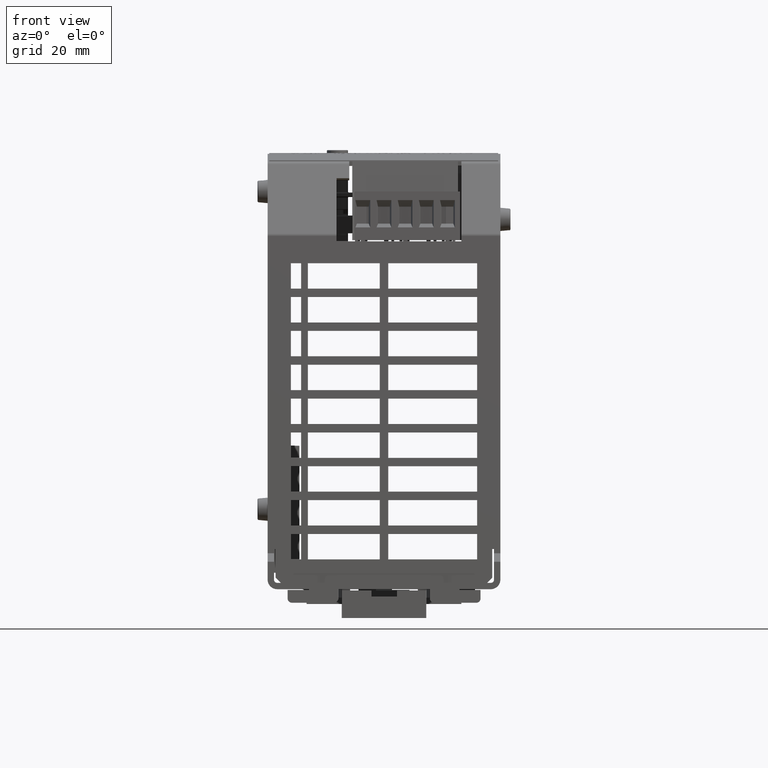
[diagram: clean part render]
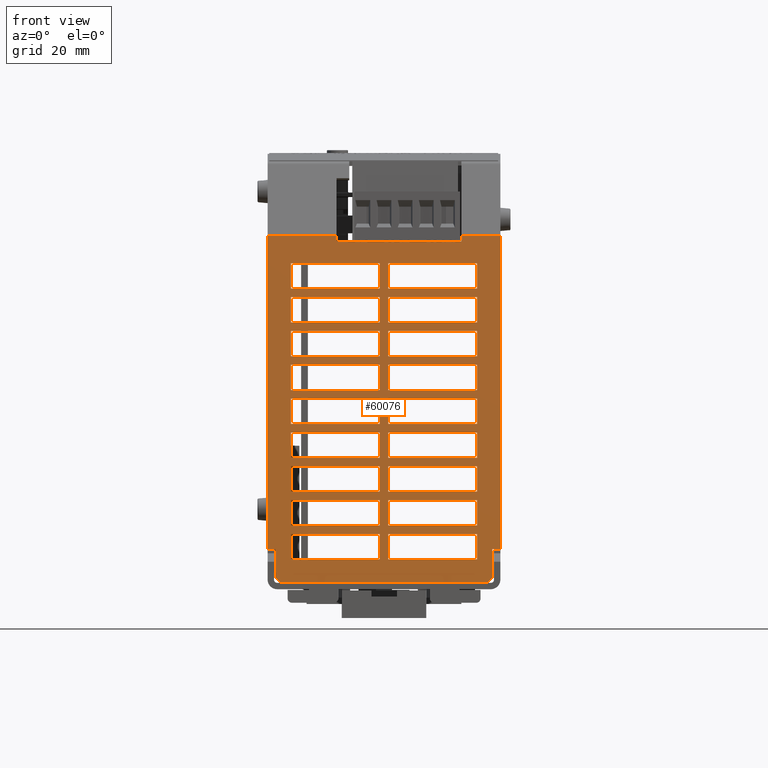
[diagram: same view with one face highlighted and labeled with its STEP entity id]
A machine part, front view. The second image highlights one B-rep face of the part: STEP entity #60076.
In plain terms, the highlighted planar face has unit normal (0, -1, 0).
Its self-contained STEP definition (entity closure, byte-faithful):
#59345=CARTESIAN_POINT('',(1.082677165354314,-2.204724409448971,3.297102970390315));
#59346=DIRECTION('',(0.0,-1.0,0.0));
#59347=DIRECTION('',(1.0,0.0,0.0));
#59348=AXIS2_PLACEMENT_3D('',#59345,#59346,#59347);
#59349=PLANE('',#59348);
#59350=CARTESIAN_POINT('',(0.960629921259829,-2.204724409448818,0.059055118110215));
#59351=VERTEX_POINT('',#59350);
#59352=CARTESIAN_POINT('',(-0.960629921259622,-2.204724409448821,0.059055118110235));
#59353=VERTEX_POINT('',#59352);
#59354=CARTESIAN_POINT('',(0.960629921259829,-2.204724409448971,0.059055118110238));
#59355=DIRECTION('',(-1.0,0.0,0.0));
#59356=VECTOR('',#59355,1.921259842519451);
#59357=LINE('',#59354,#59356);
#59358=EDGE_CURVE('',#59351,#59353,#59357,.T.);
#59359=ORIENTED_EDGE('',*,*,#59358,.F.);
#59360=CARTESIAN_POINT('',(1.007874015748031,-2.204724409448821,0.10629921259838));
#59361=VERTEX_POINT('',#59360);
#59362=CARTESIAN_POINT('',(0.960629921259829,-2.204724409448818,0.059055118110215));
#59363=DIRECTION('',(0.707106781186823,-3.988035E-014,0.707106781186272));
#59364=VECTOR('',#59363,0.066813239167225);
#59365=LINE('',#59362,#59364);
#59366=EDGE_CURVE('',#59351,#59361,#59365,.T.);
#59367=ORIENTED_EDGE('',*,*,#59366,.T.);
#59368=CARTESIAN_POINT('',(1.007874015748039,-2.20472440944882,0.374015748031467));
#59369=VERTEX_POINT('',#59368);
#59370=CARTESIAN_POINT('',(1.007874015748031,-2.204724409448821,0.10629921259838));
#59371=DIRECTION('',(0.0,0.0,1.0));
#59372=VECTOR('',#59371,0.267716535433087);
#59373=LINE('',#59370,#59372);
#59374=EDGE_CURVE('',#59361,#59369,#59373,.T.);
#59375=ORIENTED_EDGE('',*,*,#59374,.T.);
#59376=CARTESIAN_POINT('',(1.082677165354312,-2.204724409448824,0.374015748031457));
#59377=VERTEX_POINT('',#59376);
#59378=CARTESIAN_POINT('',(1.007874015748039,-2.20472440944882,0.374015748031467));
#59379=DIRECTION('',(1.0,-5.343094E-014,-1.306090E-013));
#59380=VECTOR('',#59379,0.074803149606273);
#59381=LINE('',#59378,#59380);
#59382=EDGE_CURVE('',#59369,#59377,#59381,.T.);
#59383=ORIENTED_EDGE('',*,*,#59382,.T.);
#59384=CARTESIAN_POINT('',(1.082677165354312,-2.204724409448827,3.286387887925589));
#59385=VERTEX_POINT('',#59384);
#59386=CARTESIAN_POINT('',(1.082677165354312,-2.204724409448824,0.374015748031457));
#59387=DIRECTION('',(0.0,0.0,1.0));
#59388=VECTOR('',#59387,2.912372139894131);
#59389=LINE('',#59386,#59388);
#59390=EDGE_CURVE('',#59377,#59385,#59389,.T.);
#59391=ORIENTED_EDGE('',*,*,#59390,.T.);
#59392=CARTESIAN_POINT('',(0.720472440944872,-2.204724409448827,3.286387887925584));
#59393=VERTEX_POINT('',#59392);
#59394=CARTESIAN_POINT('',(0.720472440944872,-2.204724409448827,3.286387887925584));
#59395=DIRECTION('',(1.0,0.0,0.0));
#59396=VECTOR('',#59395,0.36220472440944);
#59397=LINE('',#59394,#59396);
#59398=EDGE_CURVE('',#59393,#59385,#59397,.T.);
#59399=ORIENTED_EDGE('',*,*,#59398,.F.);
#59400=CARTESIAN_POINT('',(0.720472440944872,-2.204724409448971,3.237014947515734));
#59401=VERTEX_POINT('',#59400);
#59402=CARTESIAN_POINT('',(0.720472440944872,-2.204724409448827,3.286387887925584));
#59403=DIRECTION('',(0.0,-2.905252E-012,-1.0));
#59404=VECTOR('',#59403,0.04937294040985);
#59405=LINE('',#59402,#59404);
#59406=EDGE_CURVE('',#59393,#59401,#59405,.T.);
#59407=ORIENTED_EDGE('',*,*,#59406,.T.);
#59408=CARTESIAN_POINT('',(-0.440944881889774,-2.204724409448971,3.237014947515734));
#59409=VERTEX_POINT('',#59408);
#59410=CARTESIAN_POINT('',(0.720472440944872,-2.204724409448971,3.237014947515734));
#59411=DIRECTION('',(-1.0,0.0,0.0));
#59412=VECTOR('',#59411,1.161417322834647);
#59413=LINE('',#59410,#59412);
#59414=EDGE_CURVE('',#59401,#59409,#59413,.T.);
#59415=ORIENTED_EDGE('',*,*,#59414,.T.);
#59416=CARTESIAN_POINT('',(-0.440944881889774,-2.204724409448827,3.286387887925584));
#59417=VERTEX_POINT('',#59416);
#59418=CARTESIAN_POINT('',(-0.440944881889774,-2.204724409448971,3.237014947515734));
#59419=DIRECTION('',(0.0,2.905252E-012,1.0));
#59420=VECTOR('',#59419,0.04937294040985);
#59421=LINE('',#59418,#59420);
#59422=EDGE_CURVE('',#59409,#59417,#59421,.T.);
#59423=ORIENTED_EDGE('',*,*,#59422,.T.);
#59424=CARTESIAN_POINT('',(-1.08267716535435,-2.204724409448827,3.286387887925585));
#59425=VERTEX_POINT('',#59424);
#59426=CARTESIAN_POINT('',(-1.08267716535435,-2.204724409448827,3.286387887925585));
#59427=DIRECTION('',(1.0,0.0,0.0));
#59428=VECTOR('',#59427,0.641732283464575);
#59429=LINE('',#59426,#59428);
#59430=EDGE_CURVE('',#59425,#59417,#59429,.T.);
#59431=ORIENTED_EDGE('',*,*,#59430,.F.);
#59432=CARTESIAN_POINT('',(-1.082677165354348,-2.204724409448821,0.374015748031502));
#59433=VERTEX_POINT('',#59432);
#59434=CARTESIAN_POINT('',(-1.082677165354348,-2.204724409448821,0.374015748031502));
#59435=DIRECTION('',(0.0,0.0,1.0));
#59436=VECTOR('',#59435,2.912372139894083);
#59437=LINE('',#59434,#59436);
#59438=EDGE_CURVE('',#59433,#59425,#59437,.T.);
#59439=ORIENTED_EDGE('',*,*,#59438,.F.);
#59440=CARTESIAN_POINT('',(-1.007874015748046,-2.204724409448824,0.374015748031485));
#59441=VERTEX_POINT('',#59440);
#59442=CARTESIAN_POINT('',(-1.082677165354348,-2.204724409448821,0.374015748031502));
#59443=DIRECTION('',(1.0,-3.562063E-014,-2.270815E-013));
#59444=VECTOR('',#59443,0.074803149606303);
#59445=LINE('',#59442,#59444);
#59446=EDGE_CURVE('',#59433,#59441,#59445,.T.);
#59447=ORIENTED_EDGE('',*,*,#59446,.T.);
#59448=CARTESIAN_POINT('',(-1.007874015748047,-2.204724409448821,0.106299212598639));
#59449=VERTEX_POINT('',#59448);
#59450=CARTESIAN_POINT('',(-1.007874015748046,-2.204724409448824,0.374015748031485));
#59451=DIRECTION('',(0.0,0.0,-1.0));
#59452=VECTOR('',#59451,0.267716535432846);
#59453=LINE('',#59450,#59452);
#59454=EDGE_CURVE('',#59441,#59449,#59453,.T.);
#59455=ORIENTED_EDGE('',*,*,#59454,.T.);
#59456=CARTESIAN_POINT('',(-1.007874015748047,-2.204724409448821,0.106299212598639));
#59457=DIRECTION('',(0.707106781186703,0.0,-0.707106781186392));
#59458=VECTOR('',#59457,0.066813239167552);
#59459=LINE('',#59456,#59458);
#59460=EDGE_CURVE('',#59449,#59353,#59459,.T.);
#59461=ORIENTED_EDGE('',*,*,#59460,.T.);
#59462=EDGE_LOOP('',(#59359,#59367,#59375,#59383,#59391,#59399,#59407,#59415,#59423,#59431,#59439,#59447,#59455,#59461));
#59463=FACE_OUTER_BOUND('',#59462,.T.);
#59464=CARTESIAN_POINT('',(-0.866141732283349,-2.204724409448823,0.277559055118096));
#59465=VERTEX_POINT('',#59464);
#59466=CARTESIAN_POINT('',(-0.866141732283349,-2.204724409448823,0.513779527559042));
#59467=VERTEX_POINT('',#59466);
#59468=CARTESIAN_POINT('',(-0.866141732283349,-2.204724409448823,0.277559055118096));
#59469=DIRECTION('',(0.0,0.0,1.0));
#59470=VECTOR('',#59469,0.236220472440946);
#59471=LINE('',#59468,#59470);
#59472=EDGE_CURVE('',#59465,#59467,#59471,.T.);
#59473=ORIENTED_EDGE('',*,*,#59472,.T.);
#59474=CARTESIAN_POINT('',(-0.039370078740041,-2.204724409448823,0.513779527559042));
#59475=VERTEX_POINT('',#59474);
#59476=CARTESIAN_POINT('',(-0.866141732283349,-2.204724409448823,0.513779527559042));
#59477=DIRECTION('',(1.0,0.0,0.0));
#59478=VECTOR('',#59477,0.826771653543308);
#59479=LINE('',#59476,#59478);
#59480=EDGE_CURVE('',#59467,#59475,#59479,.T.);
#59481=ORIENTED_EDGE('',*,*,#59480,.T.);
#59482=CARTESIAN_POINT('',(-0.039370078740041,-2.204724409448823,0.277559055118096));
#59483=VERTEX_POINT('',#59482);
#59484=CARTESIAN_POINT('',(-0.039370078740041,-2.204724409448823,0.513779527559042));
#59485=DIRECTION('',(0.0,0.0,-1.0));
#59486=VECTOR('',#59485,0.236220472440946);
#59487=LINE('',#59484,#59486);
#59488=EDGE_CURVE('',#59475,#59483,#59487,.T.);
#59489=ORIENTED_EDGE('',*,*,#59488,.T.);
#59490=CARTESIAN_POINT('',(-0.039370078740041,-2.204724409448823,0.277559055118096));
#59491=DIRECTION('',(-1.0,0.0,0.0));
#59492=VECTOR('',#59491,0.826771653543307);
#59493=LINE('',#59490,#59492);
#59494=EDGE_CURVE('',#59483,#59465,#59493,.T.);
#59495=ORIENTED_EDGE('',*,*,#59494,.T.);
#59496=EDGE_LOOP('',(#59473,#59481,#59489,#59495));
#59497=FACE_BOUND('',#59496,.T.);
#59498=CARTESIAN_POINT('',(-0.866141732283348,-2.204724409448823,0.592519685039357));
#59499=VERTEX_POINT('',#59498);
#59500=CARTESIAN_POINT('',(-0.866141732283347,-2.204724409448824,0.828740157480302));
#59501=VERTEX_POINT('',#59500);
#59502=CARTESIAN_POINT('',(-0.866141732283348,-2.204724409448823,0.592519685039357));
#59503=DIRECTION('',(0.0,0.0,1.0));
#59504=VECTOR('',#59503,0.236220472440944);
#59505=LINE('',#59502,#59504);
#59506=EDGE_CURVE('',#59499,#59501,#59505,.T.);
#59507=ORIENTED_EDGE('',*,*,#59506,.T.);
#59508=CARTESIAN_POINT('',(-0.039370078740041,-2.204724409448824,0.828740157480302));
#59509=VERTEX_POINT('',#59508);
#59510=CARTESIAN_POINT('',(-0.866141732283347,-2.204724409448824,0.828740157480302));
#59511=DIRECTION('',(1.0,0.0,0.0));
#59512=VECTOR('',#59511,0.826771653543307);
#59513=LINE('',#59510,#59512);
#59514=EDGE_CURVE('',#59501,#59509,#59513,.T.);
#59515=ORIENTED_EDGE('',*,*,#59514,.T.);
#59516=CARTESIAN_POINT('',(-0.039370078740041,-2.204724409448823,0.592519685039357));
#59517=VERTEX_POINT('',#59516);
#59518=CARTESIAN_POINT('',(-0.039370078740041,-2.204724409448824,0.828740157480302));
#59519=DIRECTION('',(0.0,0.0,-1.0));
#59520=VECTOR('',#59519,0.236220472440944);
#59521=LINE('',#59518,#59520);
#59522=EDGE_CURVE('',#59509,#59517,#59521,.T.);
#59523=ORIENTED_EDGE('',*,*,#59522,.T.);
#59524=CARTESIAN_POINT('',(-0.039370078740041,-2.204724409448823,0.592519685039357));
#59525=DIRECTION('',(-1.0,0.0,0.0));
#59526=VECTOR('',#59525,0.826771653543307);
#59527=LINE('',#59524,#59526);
#59528=EDGE_CURVE('',#59517,#59499,#59527,.T.);
#59529=ORIENTED_EDGE('',*,*,#59528,.T.);
#59530=EDGE_LOOP('',(#59507,#59515,#59523,#59529));
#59531=FACE_BOUND('',#59530,.T.);
#59532=CARTESIAN_POINT('',(-0.866141732283348,-2.204724409448824,0.907480314960617));
#59533=VERTEX_POINT('',#59532);
#59534=CARTESIAN_POINT('',(-0.866141732283347,-2.204724409448824,1.143700787401562));
#59535=VERTEX_POINT('',#59534);
#59536=CARTESIAN_POINT('',(-0.866141732283348,-2.204724409448824,0.907480314960617));
#59537=DIRECTION('',(0.0,0.0,1.0));
#59538=VECTOR('',#59537,0.236220472440945);
#59539=LINE('',#59536,#59538);
#59540=EDGE_CURVE('',#59533,#59535,#59539,.T.);
#59541=ORIENTED_EDGE('',*,*,#59540,.T.);
#59542=CARTESIAN_POINT('',(-0.039370078740041,-2.204724409448824,1.143700787401562));
#59543=VERTEX_POINT('',#59542);
#59544=CARTESIAN_POINT('',(-0.866141732283347,-2.204724409448824,1.143700787401562));
#59545=DIRECTION('',(1.0,0.0,0.0));
#59546=VECTOR('',#59545,0.826771653543307);
#59547=LINE('',#59544,#59546);
#59548=EDGE_CURVE('',#59535,#59543,#59547,.T.);
#59549=ORIENTED_EDGE('',*,*,#59548,.T.);
#59550=CARTESIAN_POINT('',(-0.039370078740041,-2.204724409448824,0.907480314960617));
#59551=VERTEX_POINT('',#59550);
#59552=CARTESIAN_POINT('',(-0.039370078740041,-2.204724409448824,1.143700787401562));
#59553=DIRECTION('',(0.0,0.0,-1.0));
#59554=VECTOR('',#59553,0.236220472440945);
#59555=LINE('',#59552,#59554);
#59556=EDGE_CURVE('',#59543,#59551,#59555,.T.);
#59557=ORIENTED_EDGE('',*,*,#59556,.T.);
#59558=CARTESIAN_POINT('',(-0.039370078740041,-2.204724409448824,0.907480314960617));
#59559=DIRECTION('',(-1.0,0.0,0.0));
#59560=VECTOR('',#59559,0.826771653543307);
#59561=LINE('',#59558,#59560);
#59562=EDGE_CURVE('',#59551,#59533,#59561,.T.);
#59563=ORIENTED_EDGE('',*,*,#59562,.T.);
#59564=EDGE_LOOP('',(#59541,#59549,#59557,#59563));
#59565=FACE_BOUND('',#59564,.T.);
#59566=CARTESIAN_POINT('',(-0.866141732283347,-2.204724409448824,1.222440944881878));
#59567=VERTEX_POINT('',#59566);
#59568=CARTESIAN_POINT('',(-0.866141732283347,-2.204724409448824,1.458661417322824));
#59569=VERTEX_POINT('',#59568);
#59570=CARTESIAN_POINT('',(-0.866141732283347,-2.204724409448824,1.222440944881878));
#59571=DIRECTION('',(0.0,0.0,1.0));
#59572=VECTOR('',#59571,0.236220472440946);
#59573=LINE('',#59570,#59572);
#59574=EDGE_CURVE('',#59567,#59569,#59573,.T.);
#59575=ORIENTED_EDGE('',*,*,#59574,.T.);
#59576=CARTESIAN_POINT('',(-0.039370078740041,-2.204724409448824,1.458661417322824));
#59577=VERTEX_POINT('',#59576);
#59578=CARTESIAN_POINT('',(-0.866141732283347,-2.204724409448824,1.458661417322824));
#59579=DIRECTION('',(1.0,0.0,0.0));
#59580=VECTOR('',#59579,0.826771653543307);
#59581=LINE('',#59578,#59580);
#59582=EDGE_CURVE('',#59569,#59577,#59581,.T.);
#59583=ORIENTED_EDGE('',*,*,#59582,.T.);
#59584=CARTESIAN_POINT('',(-0.039370078740041,-2.204724409448824,1.222440944881878));
#59585=VERTEX_POINT('',#59584);
#59586=CARTESIAN_POINT('',(-0.039370078740041,-2.204724409448824,1.458661417322824));
#59587=DIRECTION('',(0.0,0.0,-1.0));
#59588=VECTOR('',#59587,0.236220472440945);
#59589=LINE('',#59586,#59588);
#59590=EDGE_CURVE('',#59577,#59585,#59589,.T.);
#59591=ORIENTED_EDGE('',*,*,#59590,.T.);
#59592=CARTESIAN_POINT('',(-0.039370078740041,-2.204724409448824,1.222440944881878));
#59593=DIRECTION('',(-1.0,0.0,0.0));
#59594=VECTOR('',#59593,0.826771653543307);
#59595=LINE('',#59592,#59594);
#59596=EDGE_CURVE('',#59585,#59567,#59595,.T.);
#59597=ORIENTED_EDGE('',*,*,#59596,.T.);
#59598=EDGE_LOOP('',(#59575,#59583,#59591,#59597));
#59599=FACE_BOUND('',#59598,.T.);
#59600=CARTESIAN_POINT('',(-0.866141732283347,-2.204724409448827,1.537401574803137));
#59601=VERTEX_POINT('',#59600);
#59602=CARTESIAN_POINT('',(-0.866141732283347,-2.204724409448825,1.773622047244082));
#59603=VERTEX_POINT('',#59602);
#59604=CARTESIAN_POINT('',(-0.866141732283347,-2.204724409448827,1.537401574803137));
#59605=DIRECTION('',(0.0,0.0,1.0));
#59606=VECTOR('',#59605,0.236220472440946);
#59607=LINE('',#59604,#59606);
#59608=EDGE_CURVE('',#59601,#59603,#59607,.T.);
#59609=ORIENTED_EDGE('',*,*,#59608,.T.);
#59610=CARTESIAN_POINT('',(-0.03937007874004,-2.204724409448825,1.773622047244082));
#59611=VERTEX_POINT('',#59610);
#59612=CARTESIAN_POINT('',(-0.866141732283347,-2.204724409448825,1.773622047244082));
#59613=DIRECTION('',(1.0,0.0,0.0));
#59614=VECTOR('',#59613,0.826771653543307);
#59615=LINE('',#59612,#59614);
#59616=EDGE_CURVE('',#59603,#59611,#59615,.T.);
#59617=ORIENTED_EDGE('',*,*,#59616,.T.);
#59618=CARTESIAN_POINT('',(-0.039370078740041,-2.204724409448827,1.537401574803137));
#59619=VERTEX_POINT('',#59618);
#59620=CARTESIAN_POINT('',(-0.03937007874004,-2.204724409448825,1.773622047244082));
#59621=DIRECTION('',(0.0,0.0,-1.0));
#59622=VECTOR('',#59621,0.236220472440946);
#59623=LINE('',#59620,#59622);
#59624=EDGE_CURVE('',#59611,#59619,#59623,.T.);
#59625=ORIENTED_EDGE('',*,*,#59624,.T.);
#59626=CARTESIAN_POINT('',(-0.039370078740041,-2.204724409448827,1.537401574803137));
#59627=DIRECTION('',(-1.0,0.0,0.0));
#59628=VECTOR('',#59627,0.826771653543307);
#59629=LINE('',#59626,#59628);
#59630=EDGE_CURVE('',#59619,#59601,#59629,.T.);
#59631=ORIENTED_EDGE('',*,*,#59630,.T.);
#59632=EDGE_LOOP('',(#59609,#59617,#59625,#59631));
#59633=FACE_BOUND('',#59632,.T.);
#59634=CARTESIAN_POINT('',(-0.866141732283347,-2.204724409448827,1.852362204724398));
#59635=VERTEX_POINT('',#59634);
#59636=CARTESIAN_POINT('',(-0.866141732283347,-2.204724409448827,2.088582677165343));
#59637=VERTEX_POINT('',#59636);
#59638=CARTESIAN_POINT('',(-0.866141732283347,-2.204724409448827,1.852362204724398));
#59639=DIRECTION('',(0.0,0.0,1.0));
#59640=VECTOR('',#59639,0.236220472440945);
#59641=LINE('',#59638,#59640);
#59642=EDGE_CURVE('',#59635,#59637,#59641,.T.);
#59643=ORIENTED_EDGE('',*,*,#59642,.T.);
#59644=CARTESIAN_POINT('',(-0.03937007874004,-2.204724409448827,2.088582677165343));
#59645=VERTEX_POINT('',#59644);
#59646=CARTESIAN_POINT('',(-0.866141732283347,-2.204724409448827,2.088582677165343));
#59647=DIRECTION('',(1.0,0.0,0.0));
#59648=VECTOR('',#59647,0.826771653543307);
#59649=LINE('',#59646,#59648);
#59650=EDGE_CURVE('',#59637,#59645,#59649,.T.);
#59651=ORIENTED_EDGE('',*,*,#59650,.T.);
#59652=CARTESIAN_POINT('',(-0.039370078740041,-2.204724409448827,1.852362204724398));
#59653=VERTEX_POINT('',#59652);
#59654=CARTESIAN_POINT('',(-0.03937007874004,-2.204724409448827,2.088582677165343));
#59655=DIRECTION('',(0.0,0.0,-1.0));
#59656=VECTOR('',#59655,0.236220472440945);
#59657=LINE('',#59654,#59656);
#59658=EDGE_CURVE('',#59645,#59653,#59657,.T.);
#59659=ORIENTED_EDGE('',*,*,#59658,.T.);
#59660=CARTESIAN_POINT('',(-0.039370078740041,-2.204724409448827,1.852362204724398));
#59661=DIRECTION('',(-1.0,0.0,0.0));
#59662=VECTOR('',#59661,0.826771653543307);
#59663=LINE('',#59660,#59662);
#59664=EDGE_CURVE('',#59653,#59635,#59663,.T.);
#59665=ORIENTED_EDGE('',*,*,#59664,.T.);
#59666=EDGE_LOOP('',(#59643,#59651,#59659,#59665));
#59667=FACE_BOUND('',#59666,.T.);
#59668=CARTESIAN_POINT('',(-0.866141732283347,-2.204724409448829,2.167322834645659));
#59669=VERTEX_POINT('',#59668);
#59670=CARTESIAN_POINT('',(-0.866141732283347,-2.204724409448827,2.403543307086602));
#59671=VERTEX_POINT('',#59670);
#59672=CARTESIAN_POINT('',(-0.866141732283347,-2.204724409448829,2.167322834645659));
#59673=DIRECTION('',(0.0,0.0,1.0));
#59674=VECTOR('',#59673,0.236220472440943);
#59675=LINE('',#59672,#59674);
#59676=EDGE_CURVE('',#59669,#59671,#59675,.T.);
#59677=ORIENTED_EDGE('',*,*,#59676,.T.);
#59678=CARTESIAN_POINT('',(-0.03937007874004,-2.204724409448827,2.403543307086602));
#59679=VERTEX_POINT('',#59678);
#59680=CARTESIAN_POINT('',(-0.866141732283347,-2.204724409448827,2.403543307086602));
#59681=DIRECTION('',(1.0,0.0,0.0));
#59682=VECTOR('',#59681,0.826771653543307);
#59683=LINE('',#59680,#59682);
#59684=EDGE_CURVE('',#59671,#59679,#59683,.T.);
#59685=ORIENTED_EDGE('',*,*,#59684,.T.);
#59686=CARTESIAN_POINT('',(-0.039370078740041,-2.204724409448829,2.167322834645659));
#59687=VERTEX_POINT('',#59686);
#59688=CARTESIAN_POINT('',(-0.03937007874004,-2.204724409448827,2.403543307086602));
#59689=DIRECTION('',(0.0,0.0,-1.0));
#59690=VECTOR('',#59689,0.236220472440943);
#59691=LINE('',#59688,#59690);
#59692=EDGE_CURVE('',#59679,#59687,#59691,.T.);
#59693=ORIENTED_EDGE('',*,*,#59692,.T.);
#59694=CARTESIAN_POINT('',(-0.039370078740041,-2.204724409448829,2.167322834645659));
#59695=DIRECTION('',(-1.0,0.0,0.0));
#59696=VECTOR('',#59695,0.826771653543307);
#59697=LINE('',#59694,#59696);
#59698=EDGE_CURVE('',#59687,#59669,#59697,.T.);
#59699=ORIENTED_EDGE('',*,*,#59698,.T.);
#59700=EDGE_LOOP('',(#59677,#59685,#59693,#59699));
#59701=FACE_BOUND('',#59700,.T.);
#59702=CARTESIAN_POINT('',(-0.866141732283347,-2.204724409448829,2.482283464566918));
#59703=VERTEX_POINT('',#59702);
#59704=CARTESIAN_POINT('',(-0.866141732283348,-2.204724409448829,2.718503937007863));
#59705=VERTEX_POINT('',#59704);
#59706=CARTESIAN_POINT('',(-0.866141732283347,-2.204724409448829,2.482283464566918));
#59707=DIRECTION('',(0.0,0.0,1.0));
#59708=VECTOR('',#59707,0.236220472440945);
#59709=LINE('',#59706,#59708);
#59710=EDGE_CURVE('',#59703,#59705,#59709,.T.);
#59711=ORIENTED_EDGE('',*,*,#59710,.T.);
#59712=CARTESIAN_POINT('',(-0.03937007874004,-2.204724409448829,2.718503937007863));
#59713=VERTEX_POINT('',#59712);
#59714=CARTESIAN_POINT('',(-0.866141732283348,-2.204724409448829,2.718503937007863));
#59715=DIRECTION('',(1.0,0.0,0.0));
#59716=VECTOR('',#59715,0.826771653543308);
#59717=LINE('',#59714,#59716);
#59718=EDGE_CURVE('',#59705,#59713,#59717,.T.);
#59719=ORIENTED_EDGE('',*,*,#59718,.T.);
#59720=CARTESIAN_POINT('',(-0.03937007874004,-2.204724409448829,2.482283464566918));
#59721=VERTEX_POINT('',#59720);
#59722=CARTESIAN_POINT('',(-0.03937007874004,-2.204724409448829,2.718503937007863));
#59723=DIRECTION('',(0.0,0.0,-1.0));
#59724=VECTOR('',#59723,0.236220472440945);
#59725=LINE('',#59722,#59724);
#59726=EDGE_CURVE('',#59713,#59721,#59725,.T.);
#59727=ORIENTED_EDGE('',*,*,#59726,.T.);
#59728=CARTESIAN_POINT('',(-0.03937007874004,-2.204724409448829,2.482283464566918));
#59729=DIRECTION('',(-1.0,0.0,0.0));
#59730=VECTOR('',#59729,0.826771653543307);
#59731=LINE('',#59728,#59730);
#59732=EDGE_CURVE('',#59721,#59703,#59731,.T.);
#59733=ORIENTED_EDGE('',*,*,#59732,.T.);
#59734=EDGE_LOOP('',(#59711,#59719,#59727,#59733));
#59735=FACE_BOUND('',#59734,.T.);
#59736=CARTESIAN_POINT('',(-0.866141732283348,-2.20472440944883,2.797244094488177));
#59737=VERTEX_POINT('',#59736);
#59738=CARTESIAN_POINT('',(-0.866141732283349,-2.204724409448829,3.033464566929123));
#59739=VERTEX_POINT('',#59738);
#59740=CARTESIAN_POINT('',(-0.866141732283348,-2.20472440944883,2.797244094488177));
#59741=DIRECTION('',(0.0,0.0,1.0));
#59742=VECTOR('',#59741,0.236220472440945);
#59743=LINE('',#59740,#59742);
#59744=EDGE_CURVE('',#59737,#59739,#59743,.T.);
#59745=ORIENTED_EDGE('',*,*,#59744,.T.);
#59746=CARTESIAN_POINT('',(-0.039370078740041,-2.204724409448829,3.033464566929123));
#59747=VERTEX_POINT('',#59746);
#59748=CARTESIAN_POINT('',(-0.866141732283349,-2.204724409448829,3.033464566929123));
#59749=DIRECTION('',(1.0,0.0,0.0));
#59750=VECTOR('',#59749,0.826771653543307);
#59751=LINE('',#59748,#59750);
#59752=EDGE_CURVE('',#59739,#59747,#59751,.T.);
#59753=ORIENTED_EDGE('',*,*,#59752,.T.);
#59754=CARTESIAN_POINT('',(-0.03937007874004,-2.20472440944883,2.797244094488177));
#59755=VERTEX_POINT('',#59754);
#59756=CARTESIAN_POINT('',(-0.039370078740041,-2.204724409448829,3.033464566929123));
#59757=DIRECTION('',(0.0,0.0,-1.0));
#59758=VECTOR('',#59757,0.236220472440945);
#59759=LINE('',#59756,#59758);
#59760=EDGE_CURVE('',#59747,#59755,#59759,.T.);
#59761=ORIENTED_EDGE('',*,*,#59760,.T.);
#59762=CARTESIAN_POINT('',(-0.03937007874004,-2.20472440944883,2.797244094488177));
#59763=DIRECTION('',(-1.0,0.0,0.0));
#59764=VECTOR('',#59763,0.826771653543308);
#59765=LINE('',#59762,#59764);
#59766=EDGE_CURVE('',#59755,#59737,#59765,.T.);
#59767=ORIENTED_EDGE('',*,*,#59766,.T.);
#59768=EDGE_LOOP('',(#59745,#59753,#59761,#59767));
#59769=FACE_BOUND('',#59768,.T.);
#59770=CARTESIAN_POINT('',(0.039370078740273,-2.204724409448821,0.277559055118096));
#59771=VERTEX_POINT('',#59770);
#59772=CARTESIAN_POINT('',(0.039370078740274,-2.204724409448823,0.513779527559042));
#59773=VERTEX_POINT('',#59772);
#59774=CARTESIAN_POINT('',(0.039370078740273,-2.204724409448821,0.277559055118096));
#59775=DIRECTION('',(0.0,0.0,1.0));
#59776=VECTOR('',#59775,0.236220472440946);
#59777=LINE('',#59774,#59776);
#59778=EDGE_CURVE('',#59771,#59773,#59777,.T.);
#59779=ORIENTED_EDGE('',*,*,#59778,.T.);
#59780=CARTESIAN_POINT('',(0.866141732283581,-2.204724409448823,0.513779527559042));
#59781=VERTEX_POINT('',#59780);
#59782=CARTESIAN_POINT('',(0.039370078740274,-2.204724409448823,0.513779527559042));
#59783=DIRECTION('',(1.0,0.0,0.0));
#59784=VECTOR('',#59783,0.826771653543306);
#59785=LINE('',#59782,#59784);
#59786=EDGE_CURVE('',#59773,#59781,#59785,.T.);
#59787=ORIENTED_EDGE('',*,*,#59786,.T.);
#59788=CARTESIAN_POINT('',(0.866141732283581,-2.204724409448821,0.277559055118096));
#59789=VERTEX_POINT('',#59788);
#59790=CARTESIAN_POINT('',(0.866141732283581,-2.204724409448823,0.513779527559042));
#59791=DIRECTION('',(0.0,0.0,-1.0));
#59792=VECTOR('',#59791,0.236220472440946);
#59793=LINE('',#59790,#59792);
#59794=EDGE_CURVE('',#59781,#59789,#59793,.T.);
#59795=ORIENTED_EDGE('',*,*,#59794,.T.);
#59796=CARTESIAN_POINT('',(0.866141732283581,-2.204724409448821,0.277559055118096));
#59797=DIRECTION('',(-1.0,0.0,0.0));
#59798=VECTOR('',#59797,0.826771653543308);
#59799=LINE('',#59796,#59798);
#59800=EDGE_CURVE('',#59789,#59771,#59799,.T.);
#59801=ORIENTED_EDGE('',*,*,#59800,.T.);
#59802=EDGE_LOOP('',(#59779,#59787,#59795,#59801));
#59803=FACE_BOUND('',#59802,.T.);
#59804=CARTESIAN_POINT('',(0.039370078740274,-2.204724409448821,0.592519685039356));
#59805=VERTEX_POINT('',#59804);
#59806=CARTESIAN_POINT('',(0.039370078740274,-2.204724409448821,0.828740157480302));
#59807=VERTEX_POINT('',#59806);
#59808=CARTESIAN_POINT('',(0.039370078740274,-2.204724409448821,0.592519685039356));
#59809=DIRECTION('',(0.0,0.0,1.0));
#59810=VECTOR('',#59809,0.236220472440946);
#59811=LINE('',#59808,#59810);
#59812=EDGE_CURVE('',#59805,#59807,#59811,.T.);
#59813=ORIENTED_EDGE('',*,*,#59812,.T.);
#59814=CARTESIAN_POINT('',(0.866141732283581,-2.204724409448821,0.828740157480302));
#59815=VERTEX_POINT('',#59814);
#59816=CARTESIAN_POINT('',(0.039370078740274,-2.204724409448821,0.828740157480302));
#59817=DIRECTION('',(1.0,0.0,0.0));
#59818=VECTOR('',#59817,0.826771653543306);
#59819=LINE('',#59816,#59818);
#59820=EDGE_CURVE('',#59807,#59815,#59819,.T.);
#59821=ORIENTED_EDGE('',*,*,#59820,.T.);
#59822=CARTESIAN_POINT('',(0.866141732283581,-2.204724409448821,0.592519685039356));
#59823=VERTEX_POINT('',#59822);
#59824=CARTESIAN_POINT('',(0.866141732283581,-2.204724409448821,0.828740157480302));
#59825=DIRECTION('',(0.0,0.0,-1.0));
#59826=VECTOR('',#59825,0.236220472440946);
#59827=LINE('',#59824,#59826);
#59828=EDGE_CURVE('',#59815,#59823,#59827,.T.);
#59829=ORIENTED_EDGE('',*,*,#59828,.T.);
#59830=CARTESIAN_POINT('',(0.866141732283581,-2.204724409448821,0.592519685039356));
#59831=DIRECTION('',(-1.0,0.0,0.0));
#59832=VECTOR('',#59831,0.826771653543306);
#59833=LINE('',#59830,#59832);
#59834=EDGE_CURVE('',#59823,#59805,#59833,.T.);
#59835=ORIENTED_EDGE('',*,*,#59834,.T.);
#59836=EDGE_LOOP('',(#59813,#59821,#59829,#59835));
#59837=FACE_BOUND('',#59836,.T.);
#59838=CARTESIAN_POINT('',(0.039370078740274,-2.204724409448823,0.907480314960617));
#59839=VERTEX_POINT('',#59838);
#59840=CARTESIAN_POINT('',(0.039370078740274,-2.204724409448823,1.143700787401562));
#59841=VERTEX_POINT('',#59840);
#59842=CARTESIAN_POINT('',(0.039370078740274,-2.204724409448823,0.907480314960617));
#59843=DIRECTION('',(0.0,0.0,1.0));
#59844=VECTOR('',#59843,0.236220472440946);
#59845=LINE('',#59842,#59844);
#59846=EDGE_CURVE('',#59839,#59841,#59845,.T.);
#59847=ORIENTED_EDGE('',*,*,#59846,.T.);
#59848=CARTESIAN_POINT('',(0.866141732283581,-2.204724409448823,1.143700787401562));
#59849=VERTEX_POINT('',#59848);
#59850=CARTESIAN_POINT('',(0.039370078740274,-2.204724409448823,1.143700787401562));
#59851=DIRECTION('',(1.0,0.0,0.0));
#59852=VECTOR('',#59851,0.826771653543306);
#59853=LINE('',#59850,#59852);
#59854=EDGE_CURVE('',#59841,#59849,#59853,.T.);
#59855=ORIENTED_EDGE('',*,*,#59854,.T.);
#59856=CARTESIAN_POINT('',(0.866141732283581,-2.204724409448823,0.907480314960617));
#59857=VERTEX_POINT('',#59856);
#59858=CARTESIAN_POINT('',(0.866141732283581,-2.204724409448823,1.143700787401562));
#59859=DIRECTION('',(0.0,0.0,-1.0));
#59860=VECTOR('',#59859,0.236220472440945);
#59861=LINE('',#59858,#59860);
#59862=EDGE_CURVE('',#59849,#59857,#59861,.T.);
#59863=ORIENTED_EDGE('',*,*,#59862,.T.);
#59864=CARTESIAN_POINT('',(0.866141732283581,-2.204724409448823,0.907480314960617));
#59865=DIRECTION('',(-1.0,0.0,0.0));
#59866=VECTOR('',#59865,0.826771653543306);
#59867=LINE('',#59864,#59866);
#59868=EDGE_CURVE('',#59857,#59839,#59867,.T.);
#59869=ORIENTED_EDGE('',*,*,#59868,.T.);
#59870=EDGE_LOOP('',(#59847,#59855,#59863,#59869));
#59871=FACE_BOUND('',#59870,.T.);
#59872=CARTESIAN_POINT('',(0.039370078740275,-2.204724409448824,1.222440944881877));
#59873=VERTEX_POINT('',#59872);
#59874=CARTESIAN_POINT('',(0.039370078740274,-2.204724409448823,1.458661417322822));
#59875=VERTEX_POINT('',#59874);
#59876=CARTESIAN_POINT('',(0.039370078740275,-2.204724409448824,1.222440944881877));
#59877=DIRECTION('',(0.0,0.0,1.0));
#59878=VECTOR('',#59877,0.236220472440945);
#59879=LINE('',#59876,#59878);
#59880=EDGE_CURVE('',#59873,#59875,#59879,.T.);
#59881=ORIENTED_EDGE('',*,*,#59880,.T.);
#59882=CARTESIAN_POINT('',(0.866141732283583,-2.204724409448823,1.458661417322822));
#59883=VERTEX_POINT('',#59882);
#59884=CARTESIAN_POINT('',(0.039370078740274,-2.204724409448823,1.458661417322822));
#59885=DIRECTION('',(1.0,0.0,0.0));
#59886=VECTOR('',#59885,0.826771653543309);
#59887=LINE('',#59884,#59886);
#59888=EDGE_CURVE('',#59875,#59883,#59887,.T.);
#59889=ORIENTED_EDGE('',*,*,#59888,.T.);
#59890=CARTESIAN_POINT('',(0.86614173228358,-2.204724409448824,1.222440944881877));
#59891=VERTEX_POINT('',#59890);
#59892=CARTESIAN_POINT('',(0.866141732283583,-2.204724409448823,1.458661417322822));
#59893=DIRECTION('',(0.0,0.0,-1.0));
#59894=VECTOR('',#59893,0.236220472440945);
#59895=LINE('',#59892,#59894);
#59896=EDGE_CURVE('',#59883,#59891,#59895,.T.);
#59897=ORIENTED_EDGE('',*,*,#59896,.T.);
#59898=CARTESIAN_POINT('',(0.86614173228358,-2.204724409448824,1.222440944881877));
#59899=DIRECTION('',(-1.0,0.0,0.0));
#59900=VECTOR('',#59899,0.826771653543304);
#59901=LINE('',#59898,#59900);
#59902=EDGE_CURVE('',#59891,#59873,#59901,.T.);
#59903=ORIENTED_EDGE('',*,*,#59902,.T.);
#59904=EDGE_LOOP('',(#59881,#59889,#59897,#59903));
#59905=FACE_BOUND('',#59904,.T.);
#59906=CARTESIAN_POINT('',(0.039370078740275,-2.204724409448825,1.537401574803137));
#59907=VERTEX_POINT('',#59906);
#59908=CARTESIAN_POINT('',(0.039370078740275,-2.204724409448825,1.773622047244083));
#59909=VERTEX_POINT('',#59908);
#59910=CARTESIAN_POINT('',(0.039370078740275,-2.204724409448825,1.537401574803137));
#59911=DIRECTION('',(0.0,0.0,1.0));
#59912=VECTOR('',#59911,0.236220472440946);
#59913=LINE('',#59910,#59912);
#59914=EDGE_CURVE('',#59907,#59909,#59913,.T.);
#59915=ORIENTED_EDGE('',*,*,#59914,.T.);
#59916=CARTESIAN_POINT('',(0.866141732283581,-2.204724409448825,1.773622047244083));
#59917=VERTEX_POINT('',#59916);
#59918=CARTESIAN_POINT('',(0.039370078740275,-2.204724409448825,1.773622047244083));
#59919=DIRECTION('',(1.0,0.0,0.0));
#59920=VECTOR('',#59919,0.826771653543305);
#59921=LINE('',#59918,#59920);
#59922=EDGE_CURVE('',#59909,#59917,#59921,.T.);
#59923=ORIENTED_EDGE('',*,*,#59922,.T.);
#59924=CARTESIAN_POINT('',(0.866141732283581,-2.204724409448825,1.537401574803137));
#59925=VERTEX_POINT('',#59924);
#59926=CARTESIAN_POINT('',(0.866141732283581,-2.204724409448825,1.773622047244083));
#59927=DIRECTION('',(0.0,0.0,-1.0));
#59928=VECTOR('',#59927,0.236220472440946);
#59929=LINE('',#59926,#59928);
#59930=EDGE_CURVE('',#59917,#59925,#59929,.T.);
#59931=ORIENTED_EDGE('',*,*,#59930,.T.);
#59932=CARTESIAN_POINT('',(0.866141732283581,-2.204724409448825,1.537401574803137));
#59933=DIRECTION('',(-1.0,0.0,0.0));
#59934=VECTOR('',#59933,0.826771653543305);
#59935=LINE('',#59932,#59934);
#59936=EDGE_CURVE('',#59925,#59907,#59935,.T.);
#59937=ORIENTED_EDGE('',*,*,#59936,.T.);
#59938=EDGE_LOOP('',(#59915,#59923,#59931,#59937));
#59939=FACE_BOUND('',#59938,.T.);
#59940=CARTESIAN_POINT('',(0.039370078740275,-2.204724409448825,1.852362204724397));
#59941=VERTEX_POINT('',#59940);
#59942=CARTESIAN_POINT('',(0.039370078740275,-2.204724409448827,2.088582677165343));
#59943=VERTEX_POINT('',#59942);
#59944=CARTESIAN_POINT('',(0.039370078740275,-2.204724409448825,1.852362204724397));
#59945=DIRECTION('',(0.0,0.0,1.0));
#59946=VECTOR('',#59945,0.236220472440945);
#59947=LINE('',#59944,#59946);
#59948=EDGE_CURVE('',#59941,#59943,#59947,.T.);
#59949=ORIENTED_EDGE('',*,*,#59948,.T.);
#59950=CARTESIAN_POINT('',(0.866141732283581,-2.204724409448827,2.088582677165343));
#59951=VERTEX_POINT('',#59950);
#59952=CARTESIAN_POINT('',(0.039370078740275,-2.204724409448827,2.088582677165343));
#59953=DIRECTION('',(1.0,0.0,0.0));
#59954=VECTOR('',#59953,0.826771653543305);
#59955=LINE('',#59952,#59954);
#59956=EDGE_CURVE('',#59943,#59951,#59955,.T.);
#59957=ORIENTED_EDGE('',*,*,#59956,.T.);
#59958=CARTESIAN_POINT('',(0.866141732283581,-2.204724409448825,1.852362204724397));
#59959=VERTEX_POINT('',#59958);
#59960=CARTESIAN_POINT('',(0.866141732283581,-2.204724409448827,2.088582677165343));
#59961=DIRECTION('',(0.0,0.0,-1.0));
#59962=VECTOR('',#59961,0.236220472440945);
#59963=LINE('',#59960,#59962);
#59964=EDGE_CURVE('',#59951,#59959,#59963,.T.);
#59965=ORIENTED_EDGE('',*,*,#59964,.T.);
#59966=CARTESIAN_POINT('',(0.866141732283581,-2.204724409448825,1.852362204724397));
#59967=DIRECTION('',(-1.0,0.0,0.0));
#59968=VECTOR('',#59967,0.826771653543305);
#59969=LINE('',#59966,#59968);
#59970=EDGE_CURVE('',#59959,#59941,#59969,.T.);
#59971=ORIENTED_EDGE('',*,*,#59970,.T.);
#59972=EDGE_LOOP('',(#59949,#59957,#59965,#59971));
#59973=FACE_BOUND('',#59972,.T.);
#59974=CARTESIAN_POINT('',(0.039370078740275,-2.204724409448827,2.167322834645657));
#59975=VERTEX_POINT('',#59974);
#59976=CARTESIAN_POINT('',(0.039370078740276,-2.204724409448827,2.403543307086602));
#59977=VERTEX_POINT('',#59976);
#59978=CARTESIAN_POINT('',(0.039370078740275,-2.204724409448827,2.167322834645657));
#59979=DIRECTION('',(0.0,0.0,1.0));
#59980=VECTOR('',#59979,0.236220472440945);
#59981=LINE('',#59978,#59980);
#59982=EDGE_CURVE('',#59975,#59977,#59981,.T.);
#59983=ORIENTED_EDGE('',*,*,#59982,.T.);
#59984=CARTESIAN_POINT('',(0.866141732283581,-2.204724409448827,2.403543307086602));
#59985=VERTEX_POINT('',#59984);
#59986=CARTESIAN_POINT('',(0.039370078740276,-2.204724409448827,2.403543307086602));
#59987=DIRECTION('',(1.0,0.0,0.0));
#59988=VECTOR('',#59987,0.826771653543305);
#59989=LINE('',#59986,#59988);
#59990=EDGE_CURVE('',#59977,#59985,#59989,.T.);
#59991=ORIENTED_EDGE('',*,*,#59990,.T.);
#59992=CARTESIAN_POINT('',(0.866141732283581,-2.204724409448827,2.167322834645657));
#59993=VERTEX_POINT('',#59992);
#59994=CARTESIAN_POINT('',(0.866141732283581,-2.204724409448827,2.403543307086602));
#59995=DIRECTION('',(0.0,0.0,-1.0));
#59996=VECTOR('',#59995,0.236220472440945);
#59997=LINE('',#59994,#59996);
#59998=EDGE_CURVE('',#59985,#59993,#59997,.T.);
#59999=ORIENTED_EDGE('',*,*,#59998,.T.);
#60000=CARTESIAN_POINT('',(0.866141732283581,-2.204724409448827,2.167322834645657));
#60001=DIRECTION('',(-1.0,0.0,0.0));
#60002=VECTOR('',#60001,0.826771653543305);
#60003=LINE('',#60000,#60002);
#60004=EDGE_CURVE('',#59993,#59975,#60003,.T.);
#60005=ORIENTED_EDGE('',*,*,#60004,.T.);
#60006=EDGE_LOOP('',(#59983,#59991,#59999,#60005));
#60007=FACE_BOUND('',#60006,.T.);
#60008=CARTESIAN_POINT('',(0.039370078740276,-2.204724409448827,2.482283464566915));
#60009=VERTEX_POINT('',#60008);
#60010=CARTESIAN_POINT('',(0.039370078740274,-2.204724409448827,2.718503937007864));
#60011=VERTEX_POINT('',#60010);
#60012=CARTESIAN_POINT('',(0.039370078740276,-2.204724409448827,2.482283464566915));
#60013=DIRECTION('',(0.0,0.0,1.0));
#60014=VECTOR('',#60013,0.236220472440949);
#60015=LINE('',#60012,#60014);
#60016=EDGE_CURVE('',#60009,#60011,#60015,.T.);
#60017=ORIENTED_EDGE('',*,*,#60016,.T.);
#60018=CARTESIAN_POINT('',(0.866141732283581,-2.204724409448827,2.718503937007864));
#60019=VERTEX_POINT('',#60018);
#60020=CARTESIAN_POINT('',(0.039370078740274,-2.204724409448827,2.718503937007864));
#60021=DIRECTION('',(1.0,0.0,0.0));
#60022=VECTOR('',#60021,0.826771653543306);
#60023=LINE('',#60020,#60022);
#60024=EDGE_CURVE('',#60011,#60019,#60023,.T.);
#60025=ORIENTED_EDGE('',*,*,#60024,.T.);
#60026=CARTESIAN_POINT('',(0.866141732283581,-2.204724409448827,2.482283464566915));
#60027=VERTEX_POINT('',#60026);
#60028=CARTESIAN_POINT('',(0.866141732283581,-2.204724409448827,2.718503937007864));
#60029=DIRECTION('',(0.0,0.0,-1.0));
#60030=VECTOR('',#60029,0.236220472440949);
#60031=LINE('',#60028,#60030);
#60032=EDGE_CURVE('',#60019,#60027,#60031,.T.);
#60033=ORIENTED_EDGE('',*,*,#60032,.T.);
#60034=CARTESIAN_POINT('',(0.866141732283581,-2.204724409448827,2.482283464566915));
#60035=DIRECTION('',(-1.0,0.0,0.0));
#60036=VECTOR('',#60035,0.826771653543305);
#60037=LINE('',#60034,#60036);
#60038=EDGE_CURVE('',#60027,#60009,#60037,.T.);
#60039=ORIENTED_EDGE('',*,*,#60038,.T.);
#60040=EDGE_LOOP('',(#60017,#60025,#60033,#60039));
#60041=FACE_BOUND('',#60040,.T.);
#60042=CARTESIAN_POINT('',(0.039370078740274,-2.204724409448829,2.797244094488177));
#60043=VERTEX_POINT('',#60042);
#60044=CARTESIAN_POINT('',(0.039370078740274,-2.204724409448829,3.033464566929123));
#60045=VERTEX_POINT('',#60044);
#60046=CARTESIAN_POINT('',(0.039370078740274,-2.204724409448829,2.797244094488177));
#60047=DIRECTION('',(0.0,0.0,1.0));
#60048=VECTOR('',#60047,0.236220472440946);
#60049=LINE('',#60046,#60048);
#60050=EDGE_CURVE('',#60043,#60045,#60049,.T.);
#60051=ORIENTED_EDGE('',*,*,#60050,.T.);
#60052=CARTESIAN_POINT('',(0.866141732283581,-2.204724409448829,3.033464566929123));
#60053=VERTEX_POINT('',#60052);
#60054=CARTESIAN_POINT('',(0.039370078740274,-2.204724409448829,3.033464566929123));
#60055=DIRECTION('',(1.0,0.0,0.0));
#60056=VECTOR('',#60055,0.826771653543306);
#60057=LINE('',#60054,#60056);
#60058=EDGE_CURVE('',#60045,#60053,#60057,.T.);
#60059=ORIENTED_EDGE('',*,*,#60058,.T.);
#60060=CARTESIAN_POINT('',(0.866141732283581,-2.204724409448829,2.797244094488177));
#60061=VERTEX_POINT('',#60060);
#60062=CARTESIAN_POINT('',(0.866141732283581,-2.204724409448829,3.033464566929123));
#60063=DIRECTION('',(0.0,0.0,-1.0));
#60064=VECTOR('',#60063,0.236220472440946);
#60065=LINE('',#60062,#60064);
#60066=EDGE_CURVE('',#60053,#60061,#60065,.T.);
#60067=ORIENTED_EDGE('',*,*,#60066,.T.);
#60068=CARTESIAN_POINT('',(0.866141732283581,-2.204724409448829,2.797244094488177));
#60069=DIRECTION('',(-1.0,0.0,0.0));
#60070=VECTOR('',#60069,0.826771653543306);
#60071=LINE('',#60068,#60070);
#60072=EDGE_CURVE('',#60061,#60043,#60071,.T.);
#60073=ORIENTED_EDGE('',*,*,#60072,.T.);
#60074=EDGE_LOOP('',(#60051,#60059,#60067,#60073));
#60075=FACE_BOUND('',#60074,.T.);
#60076=ADVANCED_FACE('',(#59463,#59497,#59531,#59565,#59599,#59633,#59667,#59701,#59735,#59769,#59803,#59837,#59871,#59905,#59939,#59973,#60007,#60041,#60075),#59349,.T.);